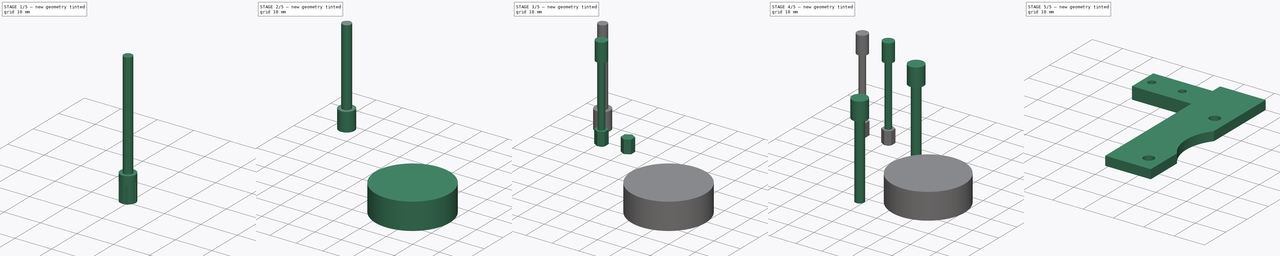
[diagram: build sequence overview — one tinted view per stage of 5, left to right]
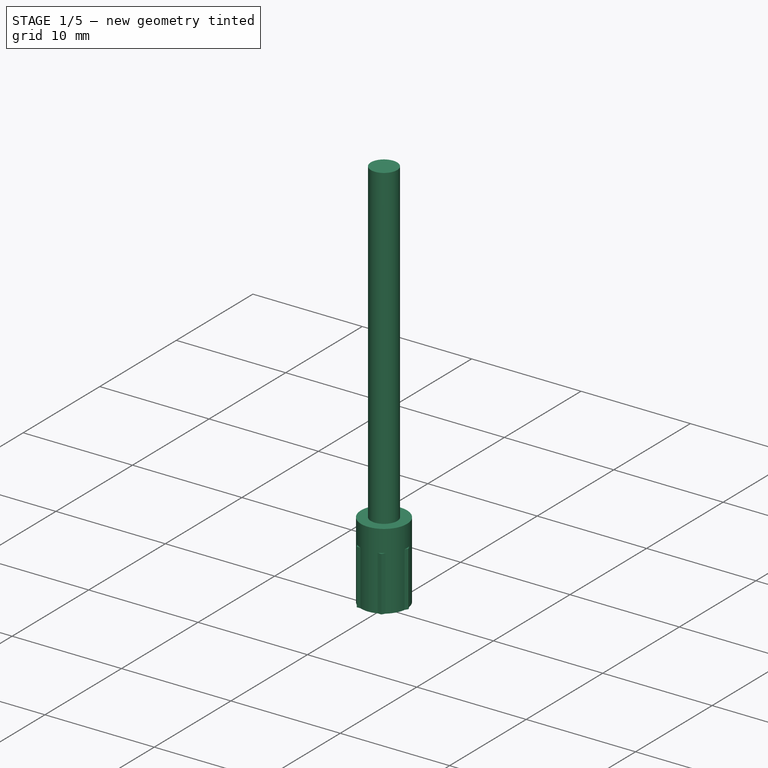
[diagram: stage 1 of 5 — iso view after this stage's code; geometry added in this stage tinted green]
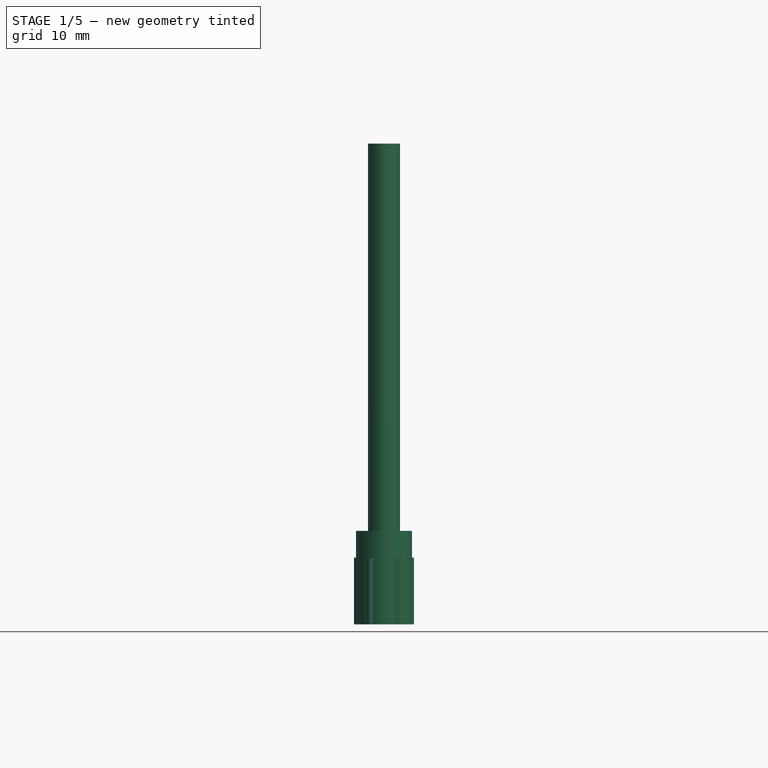
[diagram: stage 1 of 5 — front view after this stage's code; geometry added in this stage tinted green]
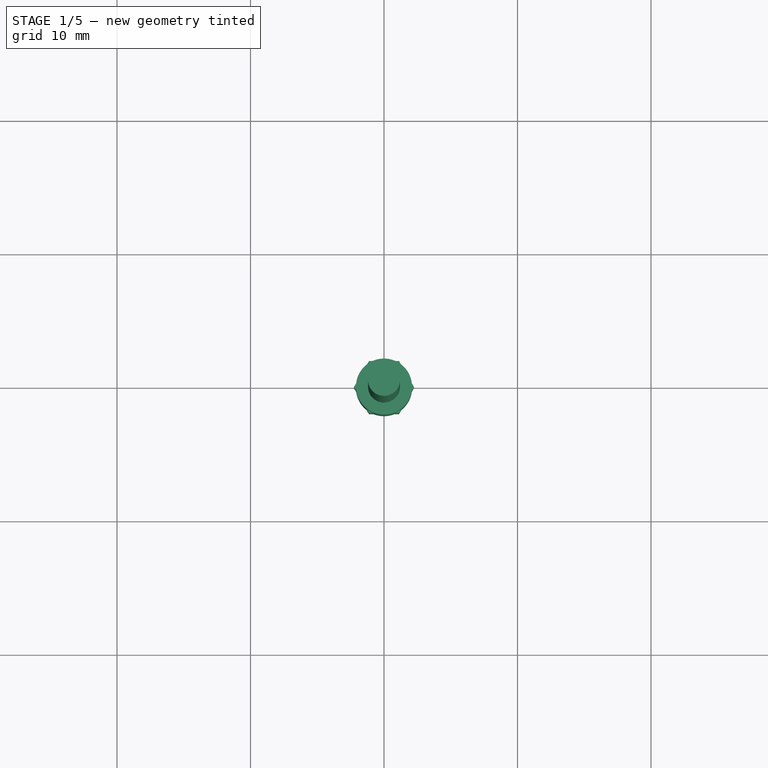
[diagram: stage 1 of 5 — top view after this stage's code; geometry added in this stage tinted green]
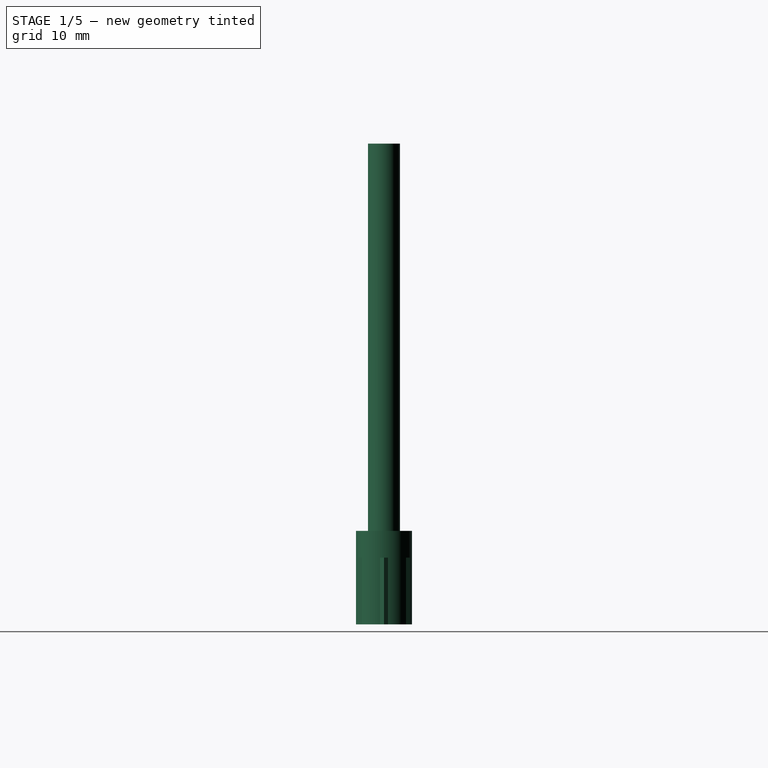
[diagram: stage 1 of 5 — right view after this stage's code; geometry added in this stage tinted green]
FCSTD DOCUMENT  (FreeCAD 0.16R6603 (Git))
Label: Art1OptoFix
License: All rights reserved
LicenseURL: http://en.wikipedia.org/wiki/All_rights_reserved
objects: Part::FeaturePython×6, Part::Cylinder×5, Part::MultiFuse×4, Sketcher::SketchObject×1, PartDesign::Pad×1, Part::Box×1, Part::Prism×1, Part::Cut×1, App::DocumentObjectGroup×1
note: 21 computed .brp shape members not serialized (recipe doc carries the construction recipe); baked Part::Feature solids carry a one-line shape summary decoded from their .brp

FEATURE [Part::Cylinder] Cylinder1061  label="M2BoltHead"
  Angle = 360
  Height = 7
  Radius = 2.1
FEATURE [Part::Cylinder] Cylinder1062  label="M2BoltBody"
  Angle = 360
  Height = 30
  Placement = pos=(0,0,6) rot=(0,0,1;0rad)
  Radius = 1.2
FEATURE [Part::MultiFuse] Fusion158  label="M2Bolt "
  Shapes = -> [Cylinder1062,Cylinder1061]
FEATURE [Part::Prism] Prism008  label="M2Nut"
  Circumradius = 2.25
  Height = 5
  Polygon = 6
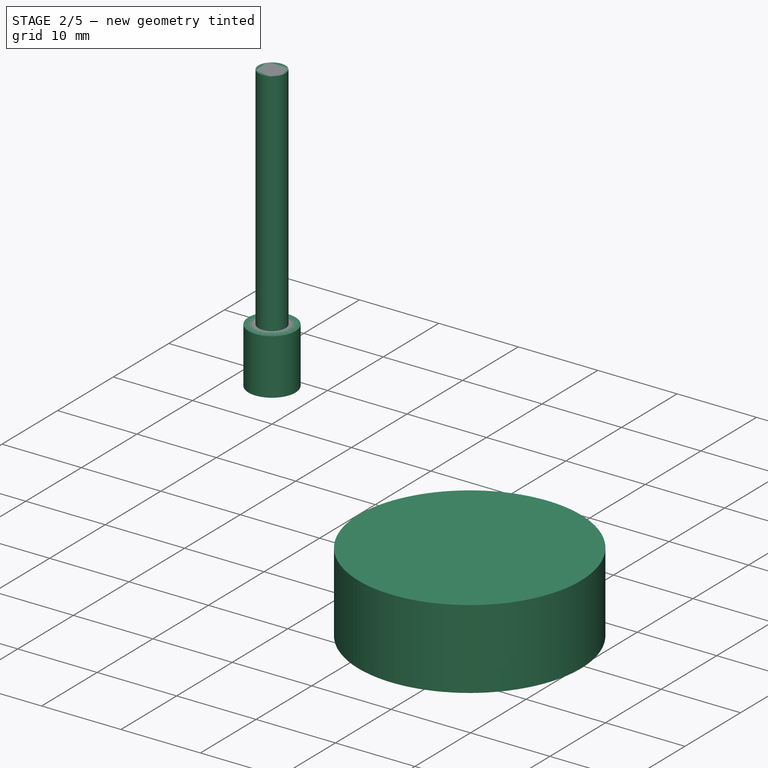
[diagram: stage 2 of 5 — iso view after this stage's code; geometry added in this stage tinted green]
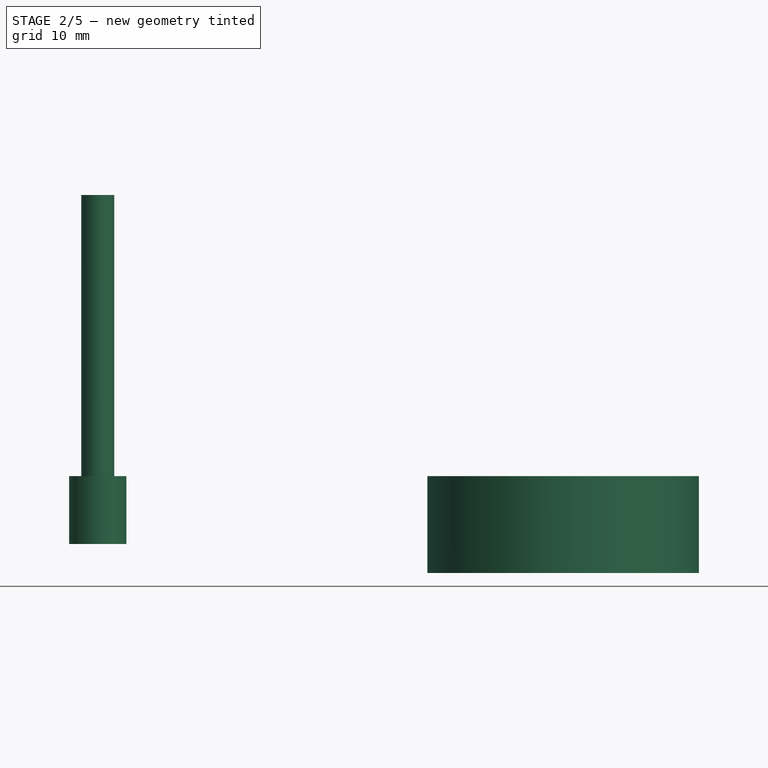
[diagram: stage 2 of 5 — front view after this stage's code; geometry added in this stage tinted green]
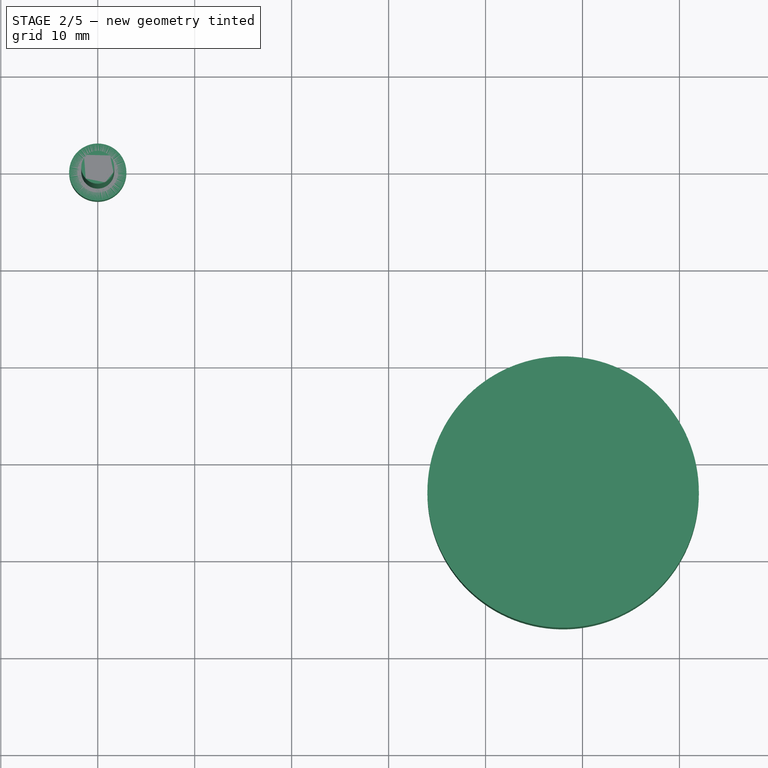
[diagram: stage 2 of 5 — top view after this stage's code; geometry added in this stage tinted green]
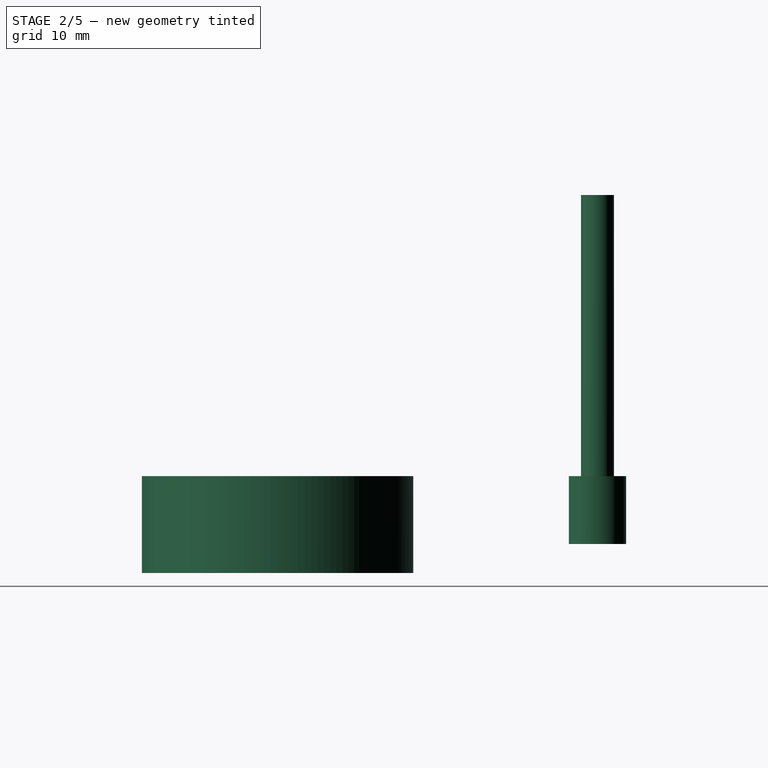
[diagram: stage 2 of 5 — right view after this stage's code; geometry added in this stage tinted green]
FEATURE [Part::Cylinder] Cylinder  label="M3BoltHead"
  Angle = 360
  Height = 7
  Radius = 2.95
FEATURE [Part::Cylinder] Cylinder001  label="M3BoltBody"
  Angle = 360
  Height = 30
  Placement = pos=(0,0,6) rot=(0,0,1;0rad)
  Radius = 1.7
FEATURE [Part::MultiFuse] Fusion  label="M3Bolt"
  Shapes = -> [Cylinder001,Cylinder]
FEATURE [Part::Cylinder] Cylinder1063  label="Cylinder1096"
  Angle = 360
  Height = 10
  Placement = pos=(48,-33,-2.99999) rot=(0,0,1;0rad)
  Radius = 14
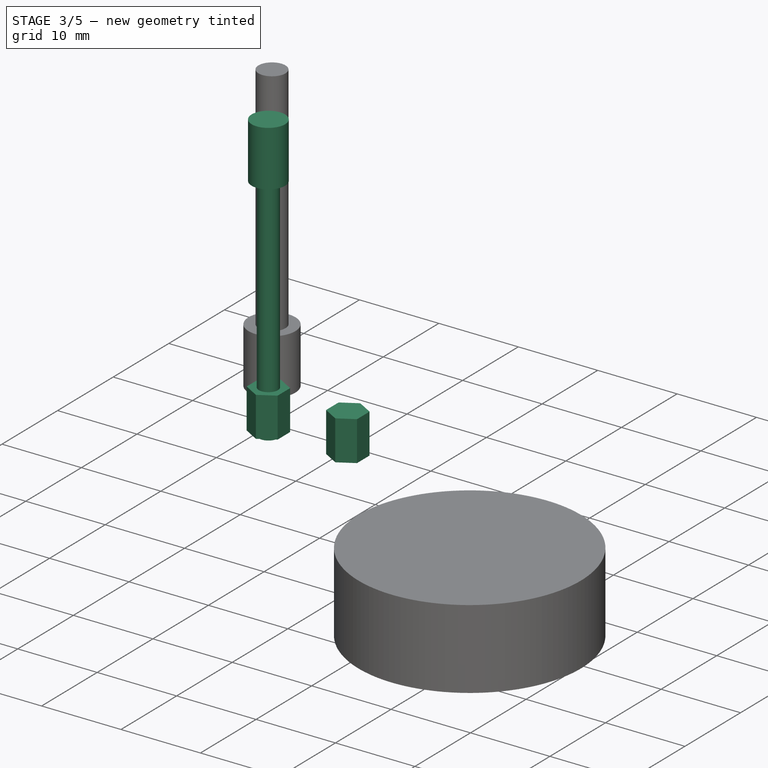
[diagram: stage 3 of 5 — iso view after this stage's code; geometry added in this stage tinted green]
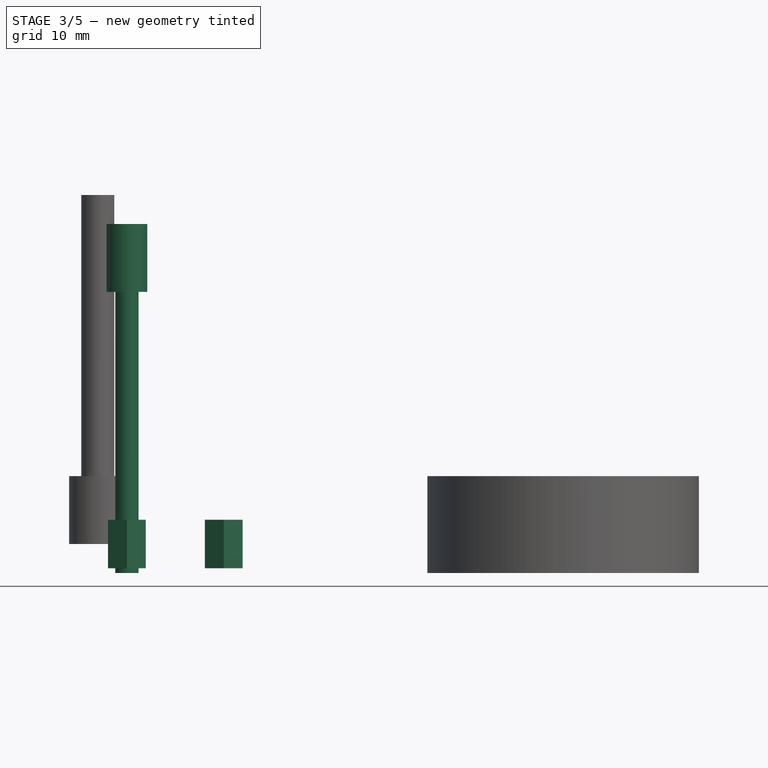
[diagram: stage 3 of 5 — front view after this stage's code; geometry added in this stage tinted green]
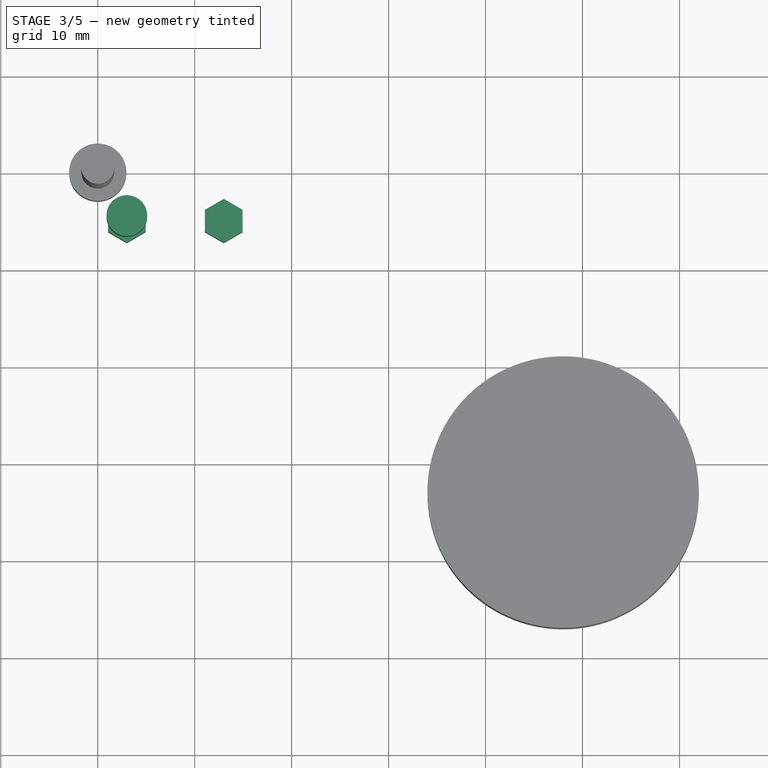
[diagram: stage 3 of 5 — top view after this stage's code; geometry added in this stage tinted green]
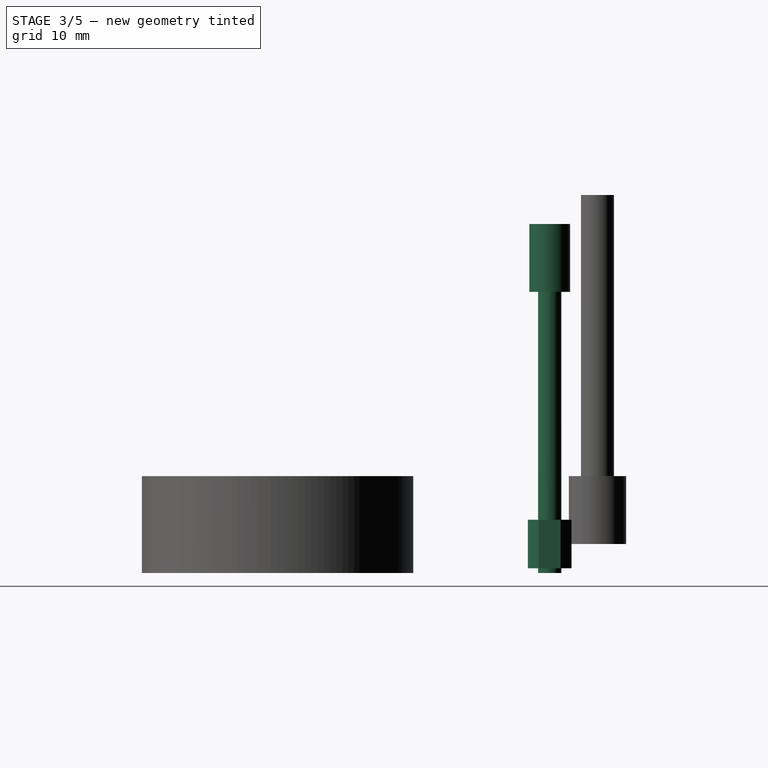
[diagram: stage 3 of 5 — right view after this stage's code; geometry added in this stage tinted green]
FEATURE [Part::FeaturePython] Clone414  label="Clone of M2Bolt 001"  # Draft clone (typed FeaturePython)
  Objects = -> [Fusion158]
  Placement = pos=(3,-4.9311,33) rot=(1,0,0;3.14159rad)
  Scale = (1,1,1)
FEATURE [Part::FeaturePython] Clone415  label="Clone of M2Nut"  # Draft clone (typed FeaturePython)
  Objects = -> [Prism008]
  Placement = pos=(3,-4.9311,-2.5) rot=(0,0,1;0.523599rad)
  Scale = (1,1,1)
FEATURE [Part::FeaturePython] Clone416  label="Clone of M2Nut001"  # Draft clone (typed FeaturePython)
  Objects = -> [Prism008]
  Placement = pos=(13,-4.9311,-2.5) rot=(0,0,1;0.523599rad)
  Scale = (1,1,1)
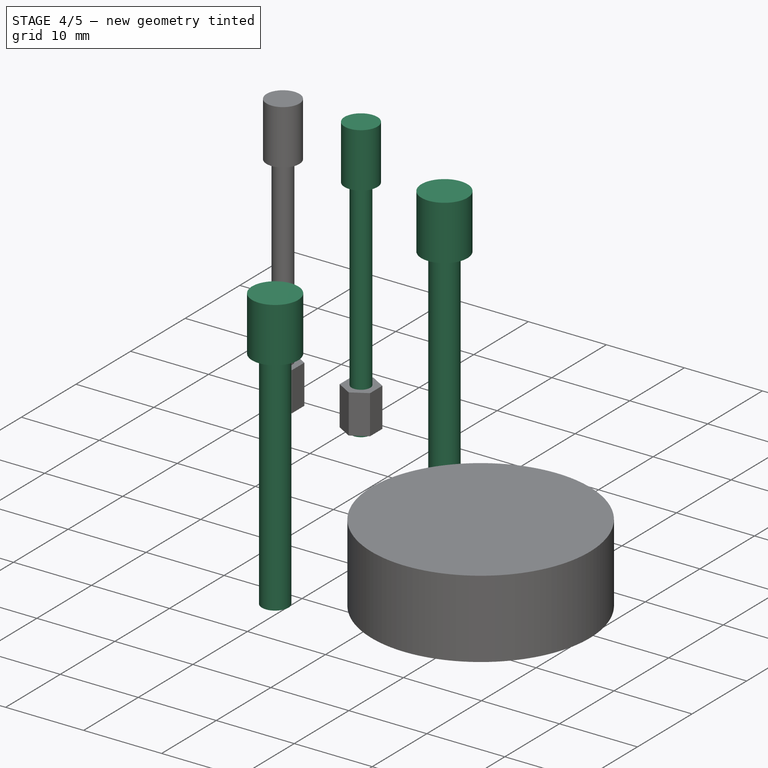
[diagram: stage 4 of 5 — iso view after this stage's code; geometry added in this stage tinted green]
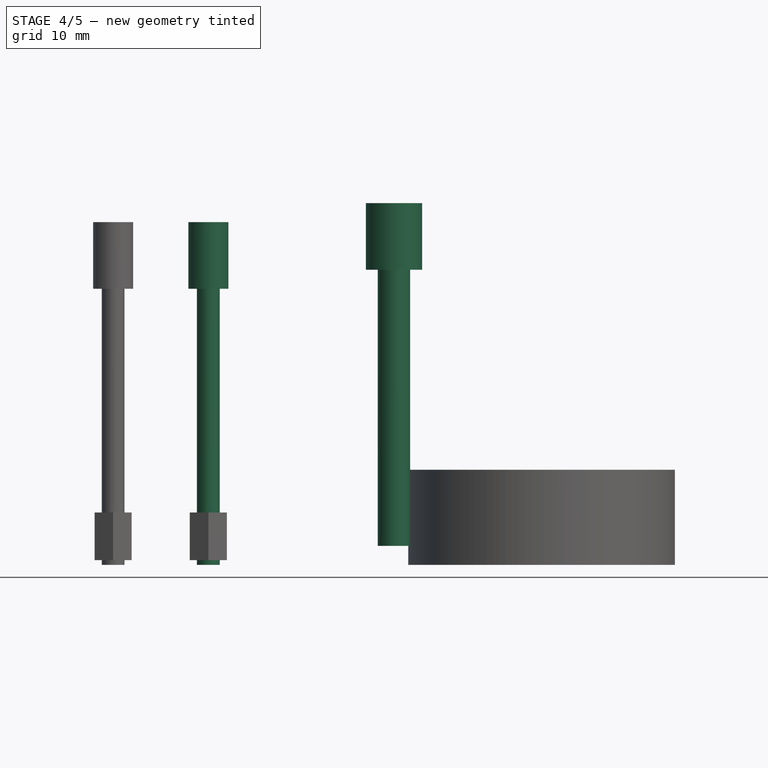
[diagram: stage 4 of 5 — front view after this stage's code; geometry added in this stage tinted green]
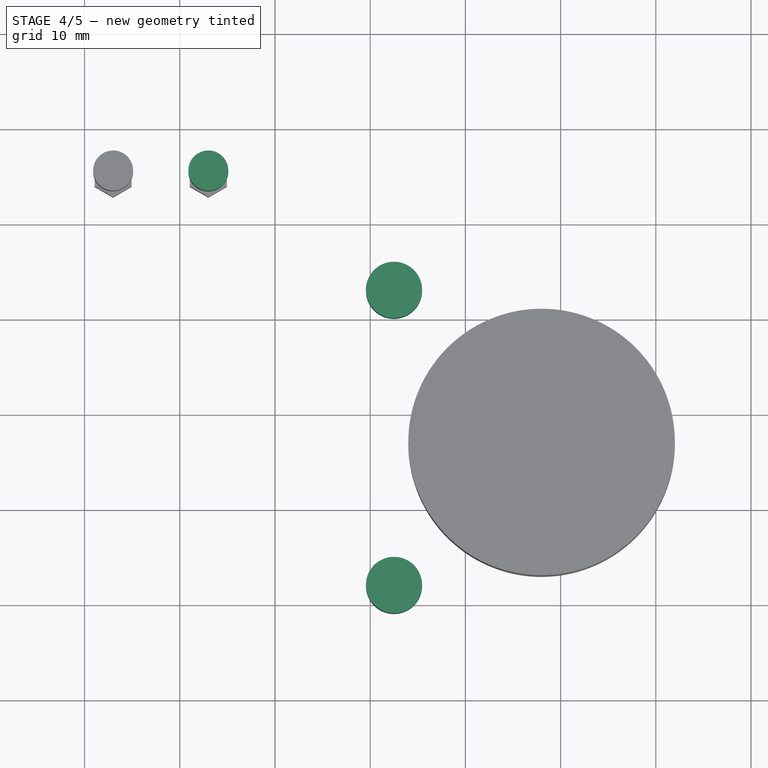
[diagram: stage 4 of 5 — top view after this stage's code; geometry added in this stage tinted green]
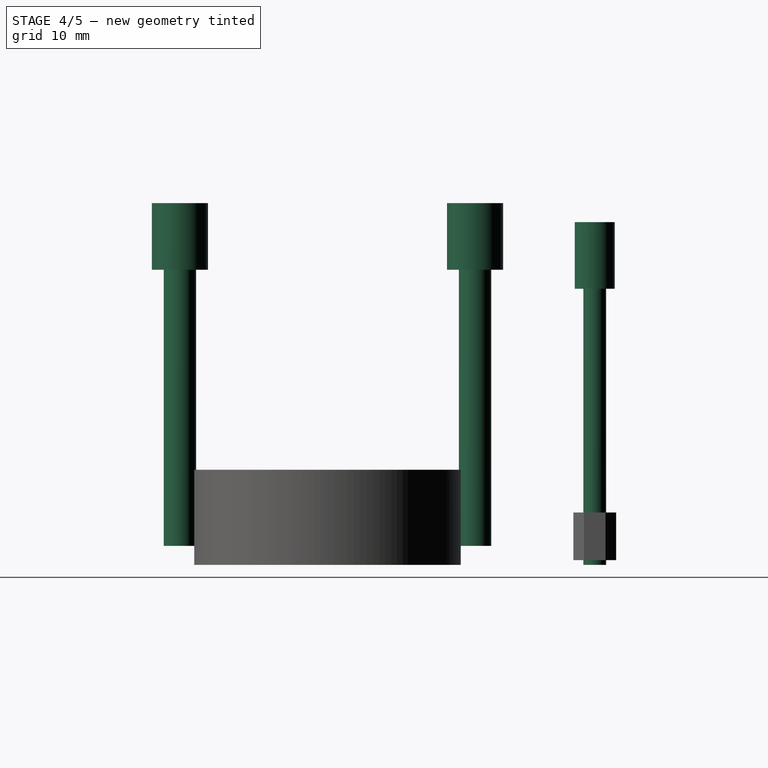
[diagram: stage 4 of 5 — right view after this stage's code; geometry added in this stage tinted green]
FEATURE [Part::FeaturePython] Clone411  label="Clone of M3Bolt132"  # Draft clone (typed FeaturePython)
  Objects = -> [Fusion]
  Placement = pos=(32.5,-17.5,35) rot=(1,0,0;3.14159rad)
  Scale = (1,1,1)
FEATURE [Part::FeaturePython] Clone412  label="Clone of M3Bolt133"  # Draft clone (typed FeaturePython)
  Objects = -> [Fusion]
  Placement = pos=(32.5,-48.5,35) rot=(1,0,0;3.14159rad)
  Scale = (1,1,1)
FEATURE [Part::FeaturePython] Clone413  label="Clone of M2Bolt "  # Draft clone (typed FeaturePython)
  Objects = -> [Fusion158]
  Placement = pos=(13,-4.9311,33) rot=(1,0,0;3.14159rad)
  Scale = (1,1,1)
FEATURE [Part::MultiFuse] Fusion159
  Shapes = -> [Cylinder1063,Clone411,Clone412,Clone416,Clone415,Clone414,Clone413]
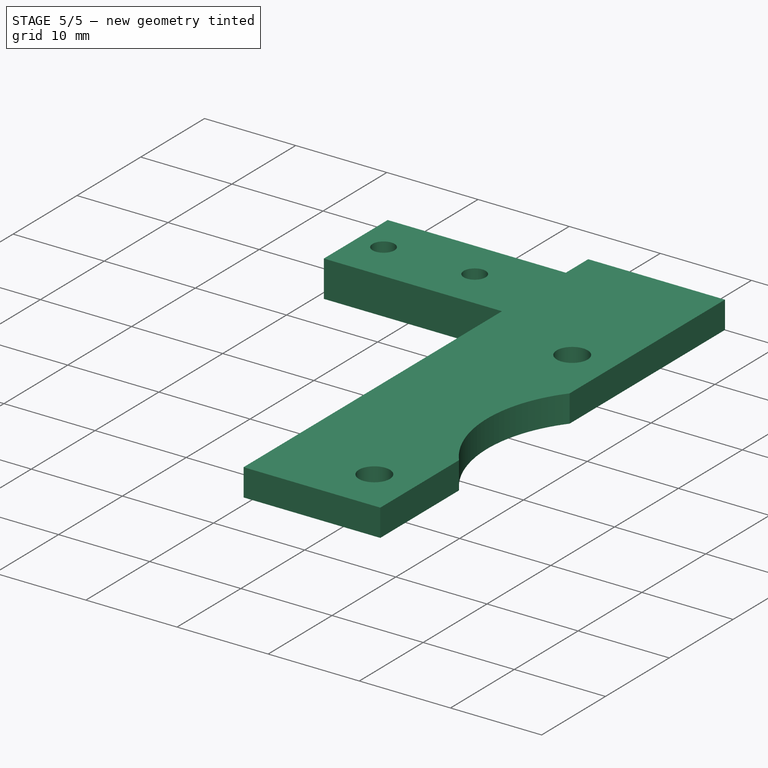
[diagram: stage 5 of 5 — iso view after this stage's code; geometry added in this stage tinted green]
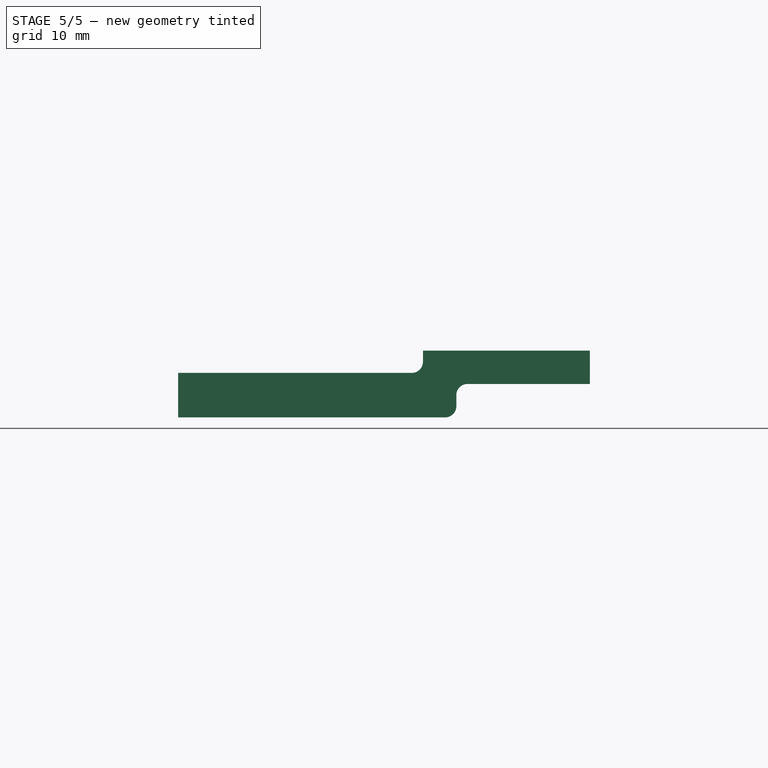
[diagram: stage 5 of 5 — front view after this stage's code; geometry added in this stage tinted green]
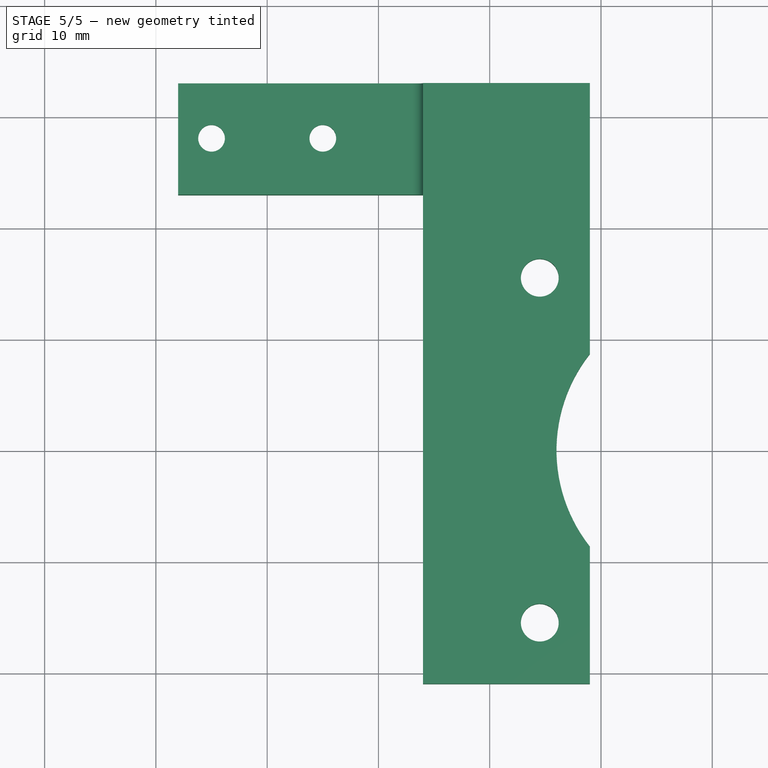
[diagram: stage 5 of 5 — top view after this stage's code; geometry added in this stage tinted green]
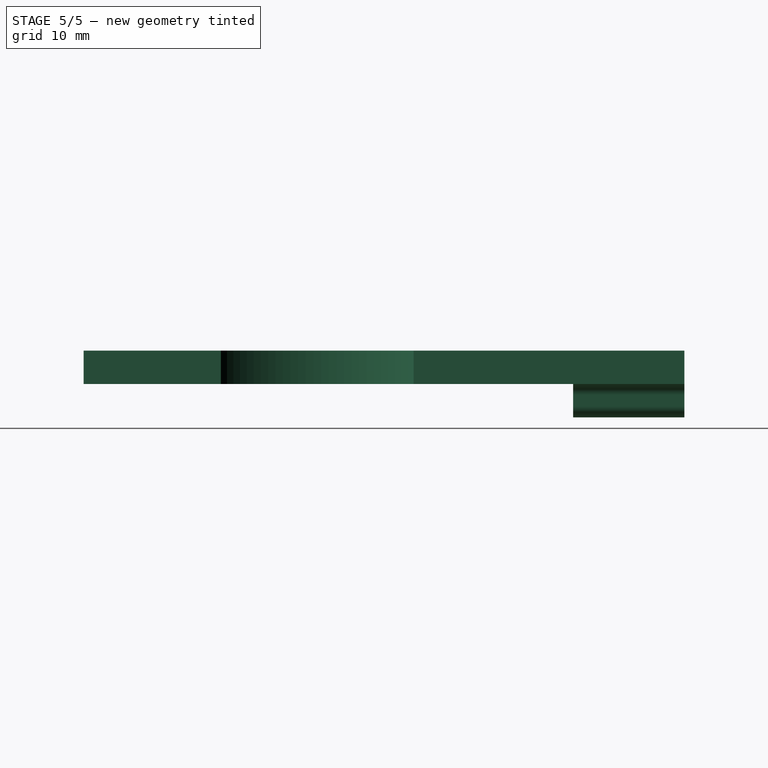
[diagram: stage 5 of 5 — right view after this stage's code; geometry added in this stage tinted green]
FEATURE [Sketcher::SketchObject] Sketch
  Placement = pos=(0,0,0) rot=(1,0,0;1.5708rad)
  sketch-geometry (11):
    g0: LineSegment StartX=0 StartY=0 StartZ=0 EndX=0 EndY=4 EndZ=0
    g1: LineSegment StartX=0 StartY=4 StartZ=0 EndX=21 EndY=4 EndZ=0
    g2: LineSegment StartX=22 StartY=5.00001 StartZ=0 EndX=22 EndY=6.00001 EndZ=0
    g3: LineSegment StartX=22 StartY=6.00001 StartZ=0 EndX=37 EndY=6.00001 EndZ=0
    g4: LineSegment StartX=37 StartY=6.00001 StartZ=0 EndX=37 EndY=3.00001 EndZ=0
    g5: LineSegment StartX=37 StartY=3.00001 StartZ=0 EndX=26 EndY=3.00001 EndZ=0
    g6: LineSegment StartX=25 StartY=2.00001 StartZ=0 EndX=25 EndY=0.999987 EndZ=0
    g7: LineSegment StartX=24 StartY=0 StartZ=0 EndX=0 EndY=0 EndZ=0
    g8: ArcOfCircle CenterX=21 CenterY=5 CenterZ=0 NormalX=0 NormalY=0 NormalZ=1 Radius=1 StartAngle=4.71239 EndAngle=6.2832
    g9: ArcOfCircle CenterX=26 CenterY=2.00001 CenterZ=0 NormalX=0 NormalY=0 NormalZ=1 Radius=1 StartAngle=1.5708 EndAngle=3.14159
    g10: ArcOfCircle CenterX=24 CenterY=1 CenterZ=0 NormalX=0 NormalY=0 NormalZ=1 Radius=1 StartAngle=4.71239 EndAngle=6.28317
  constraints (35):
    c: Coincident(g-1,g0)
    c: Vertical(g0)
    c: Coincident(g0,g1)
    c: Horizontal(g1)
    c: Vertical(g2)
    c: Coincident(g2,g3)
    c: Horizontal(g3)
    c: Coincident(g3,g4)
    c: Coincident(g4,g5)
    c: Horizontal(g5)
    c: Vertical(g6)
    c: Coincident(g7,g0)
    c: Vertical(g4)
    c: DistanceX(g7) = -24
    c: DistanceX(g3) = 15
    c: DistanceY(g4) = -3
    c: DistanceY(g2) = 1
    c: Coincident(g8,g2)
    c: Coincident(g8,g1)
    c: Tangent(g8,g2)
    c: Tangent(g1,g8)
    c: Radius(g8) = 1
    c: Coincident(g9,g5)
    c: Coincident(g9,g6)
    c: Coincident(g10,g6)
    c: Coincident(g10,g7)
    c: Horizontal(g7)
    c: Tangent(g10,g7)
    c: Tangent(g6,g10)
    c: Radius(g10) = 1
    c: Tangent(g9,g6)
    c: Tangent(g5,g9)
    c: Radius(g9) = 1
    c: DistanceX(g5) = -11
    c: DistanceY(g0) = 4
FEATURE [PartDesign::Pad] Pad
  Length = 10
  Length2 = 100
  Placement = pos=(0,0,0) rot=(1,0,0;1.5708rad)
  Sketch = -> Sketch
  Type = 0
FEATURE [Part::Box] Box268  label="Cube030"
  Height = 3
  Length = 15
  Placement = pos=(37,-10,3.00001) rot=(0,0,1;3.14159rad)
  Width = 44
FEATURE [Part::MultiFuse] Fusion157
  Shapes = -> [Pad,Box268]
FEATURE [Part::Cut] Cut140  label="Art1OptoFix"
  Base = -> Fusion157
  Placement = pos=(-8,33,41) rot=(0,0,1;0rad)
  Tool = -> Fusion159
FEATURE [App::DocumentObjectGroup] Group  label="Master"
  Group = -> [Fusion,Fusion158,Prism008]
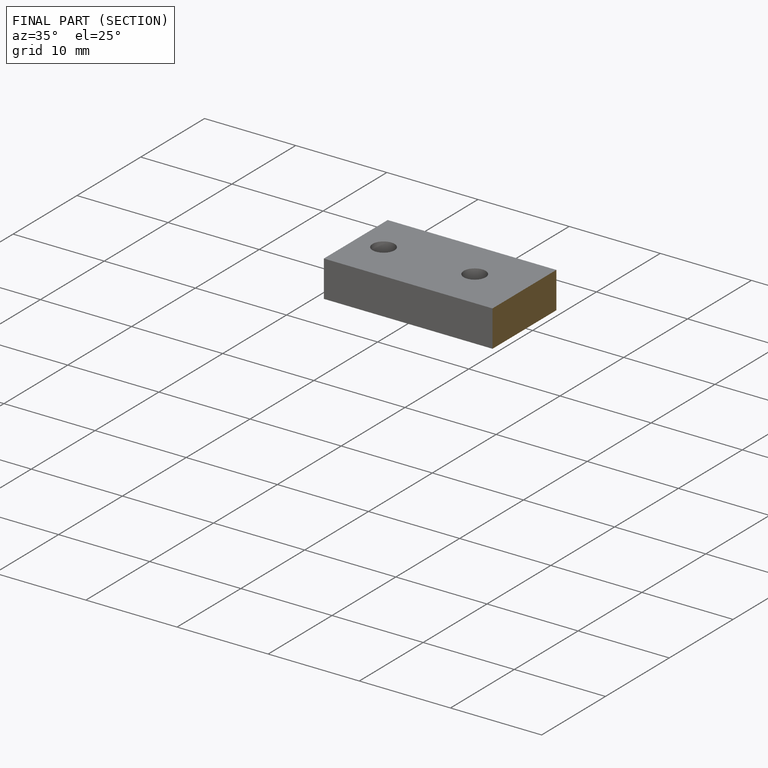
[diagram: finished part — half-section view (interior)]
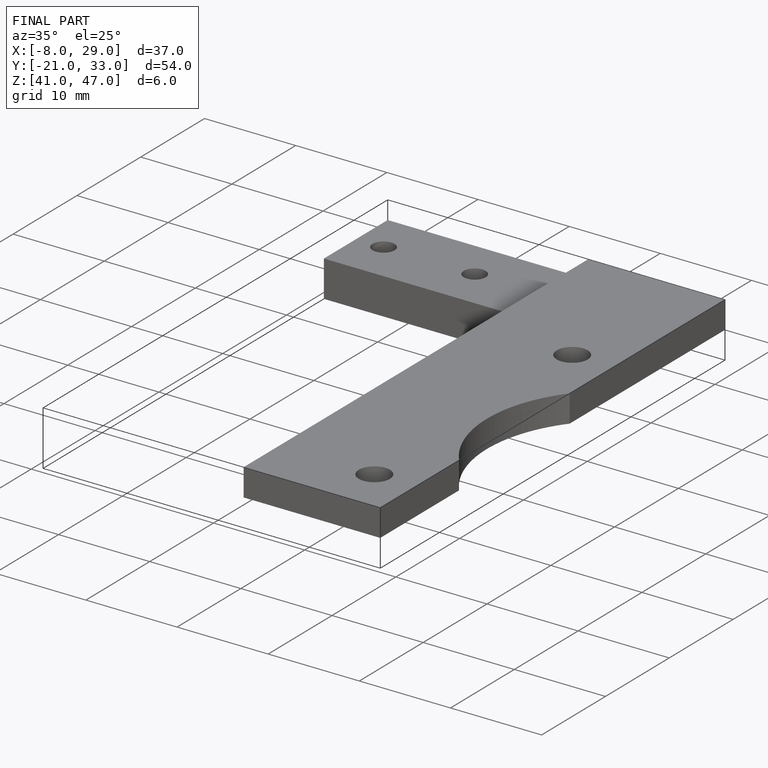
[diagram: finished part — iso view with bounding-box wireframe]
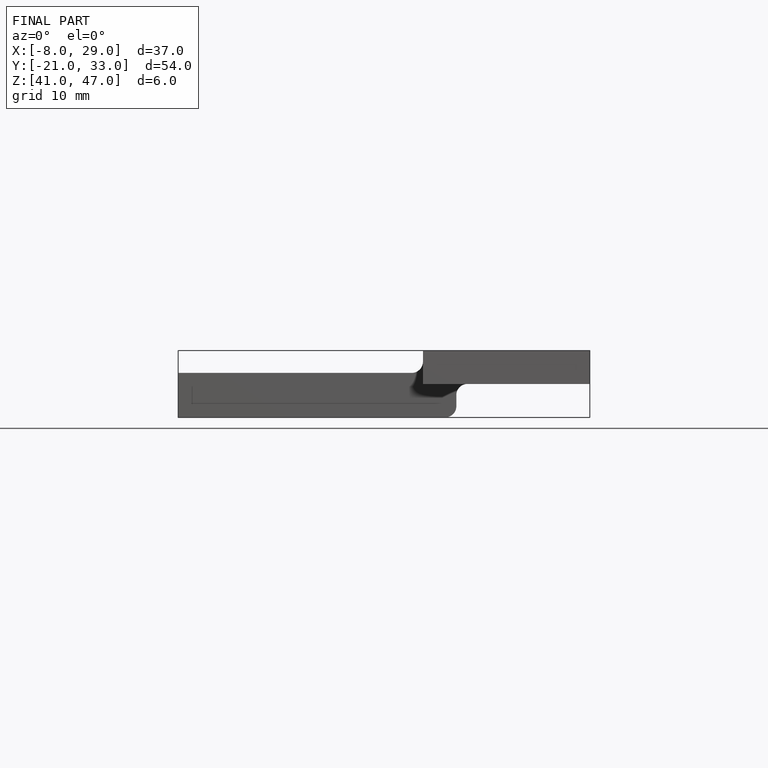
[diagram: finished part — front view with bounding-box wireframe]
